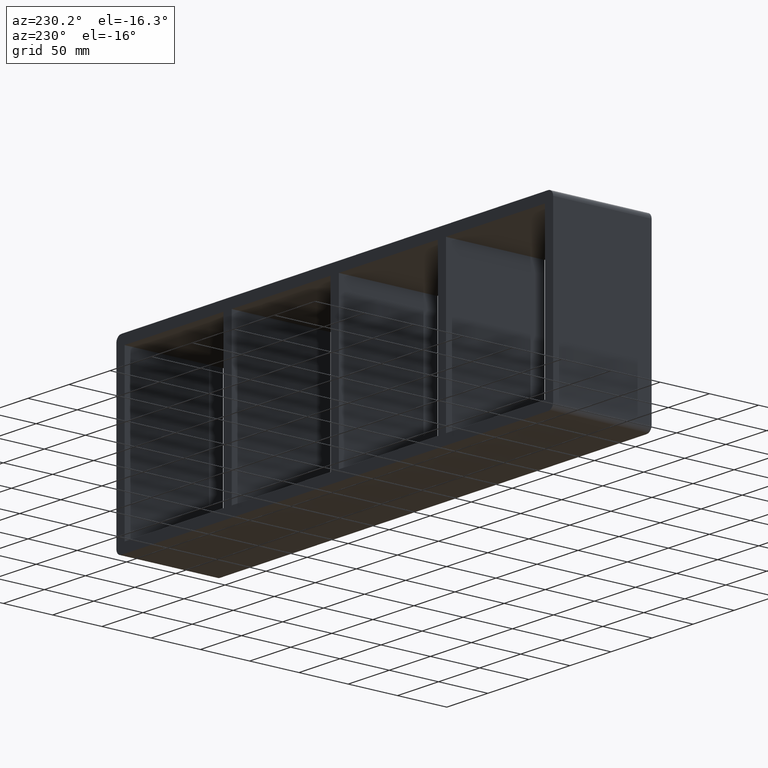
[diagram: clean part render]
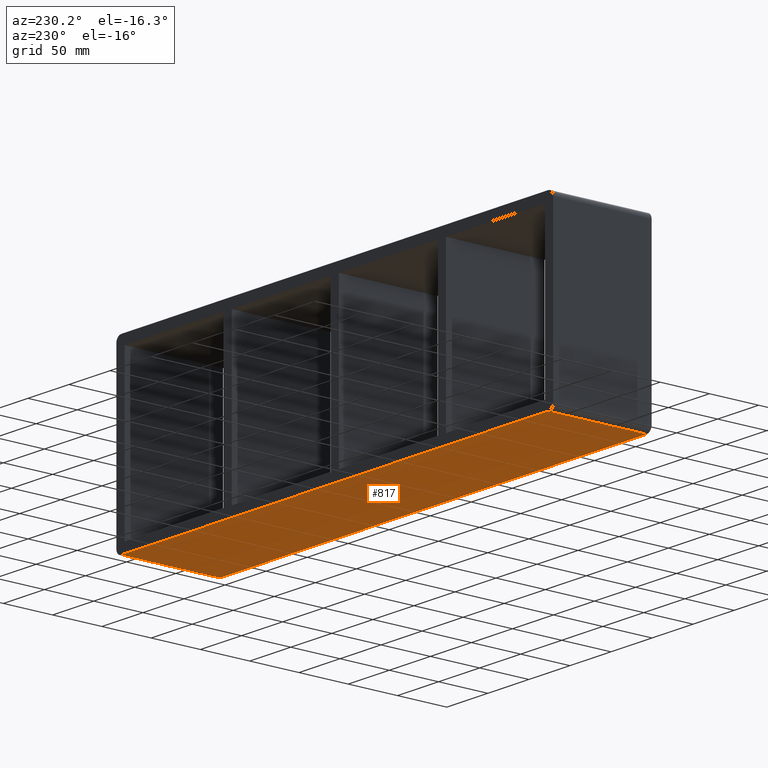
[diagram: same view with one face highlighted and labeled with its STEP entity id]
A machine part, auxiliary view. The second image highlights one B-rep face of the part: STEP entity #817.
In plain terms, the highlighted planar face has unit normal (0, 0, -1).
Its self-contained STEP definition (entity closure, byte-faithful):
#613=CARTESIAN_POINT('',(-260.00000000000006,-3.0,-89.750000000000014));
#614=VERTEX_POINT('',#613);
#622=CARTESIAN_POINT('',(260.0,-3.0,-89.750000000000014));
#623=VERTEX_POINT('',#622);
#624=CARTESIAN_POINT('',(-260.00000000000011,-3.0,-89.750000000000014));
#625=DIRECTION('',(1.0,0.0,0.0));
#626=VECTOR('',#625,520.00000000000011);
#627=LINE('',#624,#626);
#628=EDGE_CURVE('',#614,#623,#627,.T.);
#775=CARTESIAN_POINT('',(-260.00000000000006,97.0,-89.750000000000014));
#776=VERTEX_POINT('',#775);
#784=CARTESIAN_POINT('',(-260.00000000000006,-3.0,-89.750000000000014));
#785=DIRECTION('',(0.0,1.0,0.0));
#786=VECTOR('',#785,100.0);
#787=LINE('',#784,#786);
#788=EDGE_CURVE('',#614,#776,#787,.T.);
#794=CARTESIAN_POINT('',(260.0,0.0,-89.750000000000014));
#795=DIRECTION('',(0.0,0.0,-1.0));
#796=DIRECTION('',(-1.0,0.0,0.0));
#797=AXIS2_PLACEMENT_3D('',#794,#795,#796);
#798=PLANE('',#797);
#799=ORIENTED_EDGE('',*,*,#788,.T.);
#800=CARTESIAN_POINT('',(260.0,97.0,-89.750000000000014));
#801=VERTEX_POINT('',#800);
#802=CARTESIAN_POINT('',(260.0,97.0,-89.750000000000014));
#803=DIRECTION('',(-1.0,0.0,0.0));
#804=VECTOR('',#803,520.00000000000011);
#805=LINE('',#802,#804);
#806=EDGE_CURVE('',#801,#776,#805,.T.);
#807=ORIENTED_EDGE('',*,*,#806,.F.);
#808=CARTESIAN_POINT('',(260.0,-3.0,-89.750000000000014));
#809=DIRECTION('',(0.0,1.0,0.0));
#810=VECTOR('',#809,100.0);
#811=LINE('',#808,#810);
#812=EDGE_CURVE('',#623,#801,#811,.T.);
#813=ORIENTED_EDGE('',*,*,#812,.F.);
#814=ORIENTED_EDGE('',*,*,#628,.F.);
#815=EDGE_LOOP('',(#799,#807,#813,#814));
#816=FACE_OUTER_BOUND('',#815,.T.);
#817=ADVANCED_FACE('',(#816),#798,.T.);